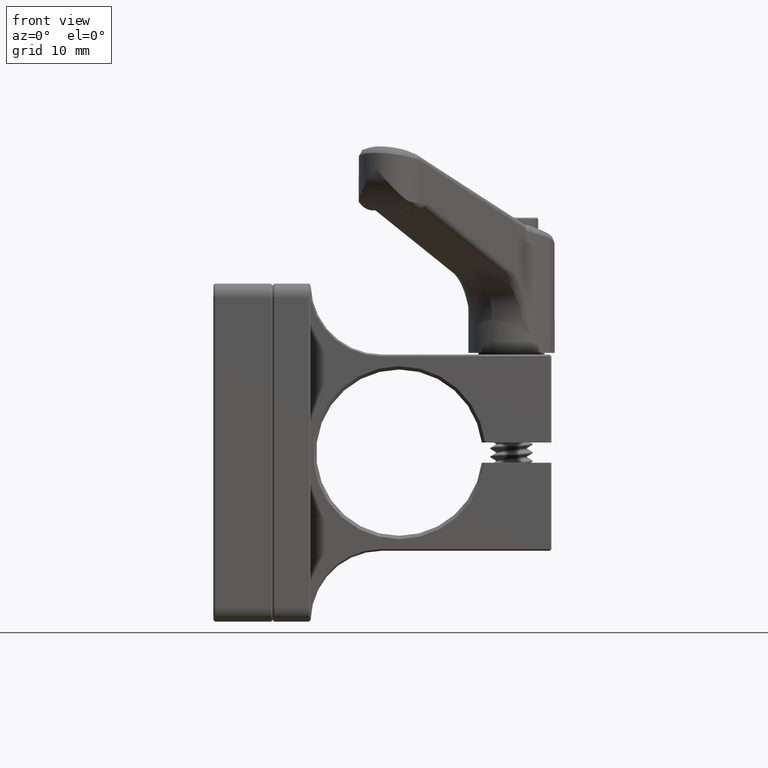
[diagram: clean part render]
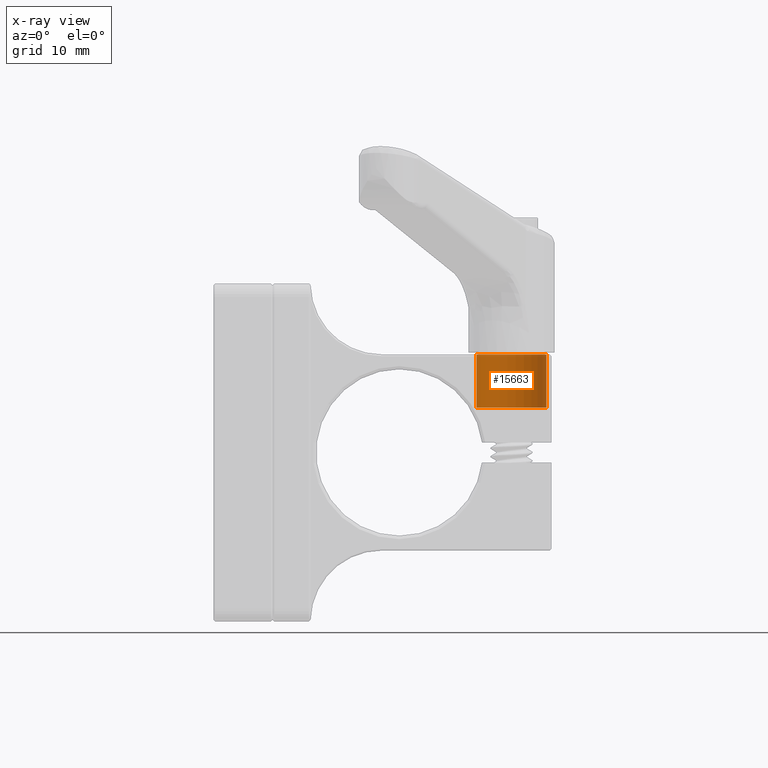
[diagram: x-ray — body ghosted, one internal face saturated and labeled with its STEP entity id]
A machine part, front view, then the same camera in x-ray: the body is ghosted and one INTERNAL B-rep face — a face not visible from any outside direction — is saturated and labeled: STEP entity #15663.
In plain terms, the highlighted cylindrical surface (edge-blend (fillet) strip) has radius 5.25 mm, axis along (0, 0, 1).
Its self-contained STEP definition (entity closure, byte-faithful):
#609 = EDGE_CURVE ( 'NONE', #13788, #19283, #8605, .T. ) ;
#821 = VECTOR ( 'NONE', #18623, 1000.000000000000000 ) ;
#878 = CIRCLE ( 'NONE', #13038, 5.249999999999997335 ) ;
#1889 = VERTEX_POINT ( 'NONE', #16905 ) ;
#2735 = AXIS2_PLACEMENT_3D ( 'NONE', #3056, #19818, #9705 ) ;
#3056 = CARTESIAN_POINT ( 'NONE',  ( 33.05750000000000455, -2.481134681235006410E-15, 14.75000000000000711 ) ) ;
#3278 = CARTESIAN_POINT ( 'NONE',  ( 33.05750000000000455, -2.481134681235006410E-15, 14.75000000000000711 ) ) ;
#3716 = VERTEX_POINT ( 'NONE', #5658 ) ;
#4686 = DIRECTION ( 'NONE',  ( -0.000000000000000000, -0.000000000000000000, 1.000000000000000000 ) ) ;
#4927 = ORIENTED_EDGE ( 'NONE', *, *, #609, .T. ) ;
#5658 = CARTESIAN_POINT ( 'NONE',  ( 27.80750000000000455, -1.838195111682646093E-15, 6.750000000000007994 ) ) ;
#6174 = ORIENTED_EDGE ( 'NONE', *, *, #6559, .F. ) ;
#6559 = EDGE_CURVE ( 'NONE', #13788, #3716, #878, .T. ) ;
#6925 = DIRECTION ( 'NONE',  ( -0.000000000000000000, -0.000000000000000000, 1.000000000000000000 ) ) ;
#8231 = CARTESIAN_POINT ( 'NONE',  ( 33.05750000000000455, -2.481134681235006410E-15, 6.750000000000007994 ) ) ;
#8326 = ORIENTED_EDGE ( 'NONE', *, *, #19388, .F. ) ;
#8501 = EDGE_CURVE ( 'NONE', #19283, #1889, #11407, .T. ) ;
#8605 = LINE ( 'NONE', #20263, #821 ) ;
#9705 = DIRECTION ( 'NONE',  ( 1.000000000000000000, 0.000000000000000000, 0.000000000000000000 ) ) ;
#10292 = ORIENTED_EDGE ( 'NONE', *, *, #8501, .T. ) ;
#10718 = AXIS2_PLACEMENT_3D ( 'NONE', #3278, #4686, #17864 ) ;
#11407 = CIRCLE ( 'NONE', #10718, 5.249999999999997335 ) ;
#12123 = CARTESIAN_POINT ( 'NONE',  ( 38.30750000000000455, -2.481134681235006410E-15, 6.750000000000007994 ) ) ;
#12254 = VECTOR ( 'NONE', #14173, 1000.000000000000000 ) ;
#12967 = CYLINDRICAL_SURFACE ( 'NONE', #2735, 5.249999999999997335 ) ;
#13038 = AXIS2_PLACEMENT_3D ( 'NONE', #8231, #6925, #16635 ) ;
#13788 = VERTEX_POINT ( 'NONE', #12123 ) ;
#13956 = CARTESIAN_POINT ( 'NONE',  ( 38.30750000000000455, -2.481134681235006410E-15, 14.75000000000000711 ) ) ;
#14173 = DIRECTION ( 'NONE',  ( -0.000000000000000000, -0.000000000000000000, 1.000000000000000000 ) ) ;
#14485 = LINE ( 'NONE', #20898, #12254 ) ;
#15663 = ADVANCED_FACE ( 'NONE', ( #16565 ), #12967, .F. ) ;
#16565 = FACE_OUTER_BOUND ( 'NONE', #21441, .T. ) ;
#16635 = DIRECTION ( 'NONE',  ( 1.000000000000000000, 0.000000000000000000, 0.000000000000000000 ) ) ;
#16905 = CARTESIAN_POINT ( 'NONE',  ( 27.80750000000000455, -1.838195111682646093E-15, 14.75000000000000711 ) ) ;
#17864 = DIRECTION ( 'NONE',  ( 1.000000000000000000, 0.000000000000000000, 0.000000000000000000 ) ) ;
#18623 = DIRECTION ( 'NONE',  ( -0.000000000000000000, -0.000000000000000000, 1.000000000000000000 ) ) ;
#19283 = VERTEX_POINT ( 'NONE', #13956 ) ;
#19388 = EDGE_CURVE ( 'NONE', #3716, #1889, #14485, .T. ) ;
#19818 = DIRECTION ( 'NONE',  ( -0.000000000000000000, -0.000000000000000000, 1.000000000000000000 ) ) ;
#20263 = CARTESIAN_POINT ( 'NONE',  ( 38.30750000000000455, -2.481134681235006410E-15, 14.75000000000000711 ) ) ;
#20898 = CARTESIAN_POINT ( 'NONE',  ( 27.80750000000000455, -1.838195111682646093E-15, 14.75000000000000711 ) ) ;
#21441 = EDGE_LOOP ( 'NONE', ( #8326, #6174, #4927, #10292 ) ) ;